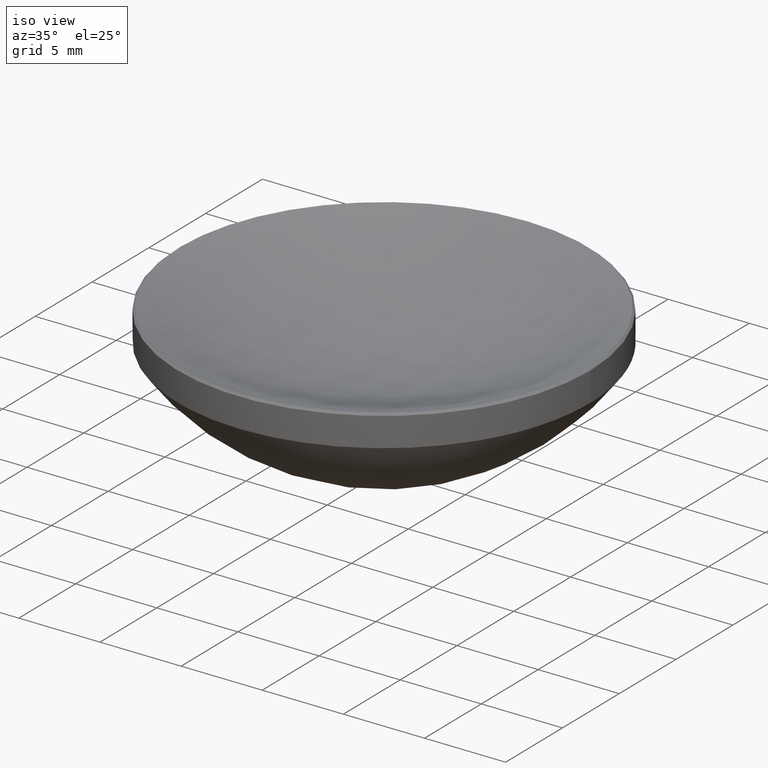
[diagram: clean part render]
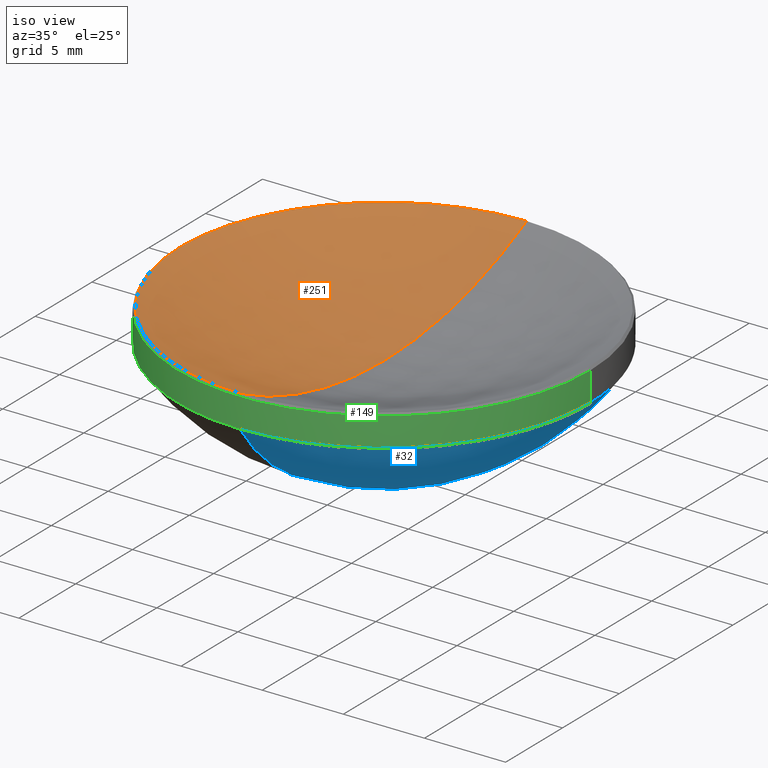
[diagram: same view with three faces highlighted in distinct colors, each labeled with its STEP entity id]
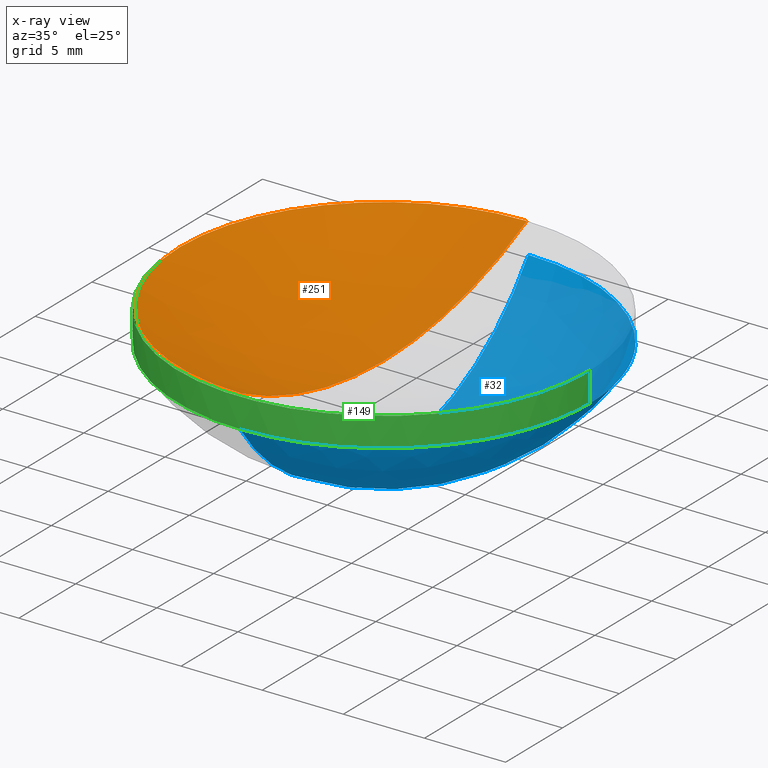
[diagram: x-ray of the same camera — body ghosted, the three highlighted faces saturated]
A machine part, iso view with three faces highlighted in distinct colors.
The next image is the same camera in x-ray (body ghosted, the three faces saturated) — at least one of them is partly hidden behind the body in this view.
Their STEP definitions:

[orange] entity #251 — the highlighted spherical surface has radius 28 mm.
#10 = CARTESIAN_POINT ( 'NONE',  ( -1.539033449312763562E-15, -12.56716181665030874, 11.93283818334969126 ) ) ;
#21 = AXIS2_PLACEMENT_3D ( 'NONE', #247, #141, #226 ) ;
#22 = EDGE_CURVE ( 'NONE', #197, #242, #192, .T. ) ;
#27 = CIRCLE ( 'NONE', #92, 27.99999999999999645 ) ;
#28 = ORIENTED_EDGE ( 'NONE', *, *, #258, .T. ) ;
#31 = DIRECTION ( 'NONE',  ( 1.000000000000000000, 0.000000000000000000, 0.000000000000000000 ) ) ;
#37 = DIRECTION ( 'NONE',  ( 1.000000000000000000, 0.000000000000000000, 0.000000000000000000 ) ) ;
#42 = CARTESIAN_POINT ( 'NONE',  ( 0.000000000000000000, 12.56716181665030874, 11.93283818334969126 ) ) ;
#44 = EDGE_CURVE ( 'NONE', #242, #187, #218, .T. ) ;
#45 = EDGE_LOOP ( 'NONE', ( #154, #130, #166, #28 ) ) ;
#47 = CARTESIAN_POINT ( 'NONE',  ( 0.000000000000000000, 0.000000000000000000, 36.95415797016601545 ) ) ;
#48 = VERTEX_POINT ( 'NONE', #10 ) ;
#70 = DIRECTION ( 'NONE',  ( 0.000000000000000000, 0.000000000000000000, -1.000000000000000000 ) ) ;
#74 = CARTESIAN_POINT ( 'NONE',  ( 0.000000000000000000, 0.000000000000000000, 11.93283818334969126 ) ) ;
#92 = AXIS2_PLACEMENT_3D ( 'NONE', #278, #115, #234 ) ;
#115 = DIRECTION ( 'NONE',  ( -1.000000000000000000, 1.224646799147353207E-16, 0.000000000000000000 ) ) ;
#130 = ORIENTED_EDGE ( 'NONE', *, *, #22, .T. ) ;
#140 = EDGE_CURVE ( 'NONE', #197, #48, #27, .T. ) ;
#141 = DIRECTION ( 'NONE',  ( -1.000000000000000000, 0.000000000000000000, 0.000000000000000000 ) ) ;
#154 = ORIENTED_EDGE ( 'NONE', *, *, #140, .F. ) ;
#155 = DIRECTION ( 'NONE',  ( 1.000000000000000000, 0.000000000000000000, 0.000000000000000000 ) ) ;
#160 = SPHERICAL_SURFACE ( 'NONE', #21, 27.99999999999999645 ) ;
#163 = AXIS2_PLACEMENT_3D ( 'NONE', #74, #229, #37 ) ;
#166 = ORIENTED_EDGE ( 'NONE', *, *, #44, .T. ) ;
#168 = AXIS2_PLACEMENT_3D ( 'NONE', #180, #271, #31 ) ;
#180 = CARTESIAN_POINT ( 'NONE',  ( 0.000000000000000000, 0.000000000000000000, 11.93283818334969126 ) ) ;
#187 = VERTEX_POINT ( 'NONE', #256 ) ;
#192 = CIRCLE ( 'NONE', #245, 27.99999999999999645 ) ;
#197 = VERTEX_POINT ( 'NONE', #231 ) ;
#218 = CIRCLE ( 'NONE', #168, 12.56716181665030341 ) ;
#221 = CIRCLE ( 'NONE', #163, 12.56716181665030341 ) ;
#226 = DIRECTION ( 'NONE',  ( 0.000000000000000000, 1.000000000000000000, 0.000000000000000000 ) ) ;
#229 = DIRECTION ( 'NONE',  ( -0.000000000000000000, -0.000000000000000000, 1.000000000000000000 ) ) ;
#231 = CARTESIAN_POINT ( 'NONE',  ( 0.000000000000000000, 1.714505518806294441E-15, 8.954157970166020775 ) ) ;
#234 = DIRECTION ( 'NONE',  ( -1.224646799147353207E-16, -1.000000000000000000, 0.000000000000000000 ) ) ;
#242 = VERTEX_POINT ( 'NONE', #42 ) ;
#245 = AXIS2_PLACEMENT_3D ( 'NONE', #47, #155, #70 ) ;
#247 = CARTESIAN_POINT ( 'NONE',  ( 0.000000000000000000, 0.000000000000000000, 36.95415797016601545 ) ) ;
#251 = ADVANCED_FACE ( 'NONE', ( #272 ), #160, .F. ) ;
#256 = CARTESIAN_POINT ( 'NONE',  ( -12.56716181665030341, 0.000000000000000000, 11.93283818334969126 ) ) ;
#258 = EDGE_CURVE ( 'NONE', #187, #48, #221, .T. ) ;
#271 = DIRECTION ( 'NONE',  ( -0.000000000000000000, -0.000000000000000000, 1.000000000000000000 ) ) ;
#272 = FACE_OUTER_BOUND ( 'NONE', #45, .T. ) ;
#278 = CARTESIAN_POINT ( 'NONE',  ( 0.000000000000000000, 0.000000000000000000, 36.95415797016601545 ) ) ;

[blue] entity #32 — the highlighted spherical surface has radius 15.5 mm.
#6 = ORIENTED_EDGE ( 'NONE', *, *, #167, .F. ) ;
#12 = EDGE_CURVE ( 'NONE', #198, #106, #65, .T. ) ;
#13 = CARTESIAN_POINT ( 'NONE',  ( 0.000000000000000000, 12.69999999999999574, 10.00000000000000000 ) ) ;
#23 = EDGE_LOOP ( 'NONE', ( #175, #267, #216, #6 ) ) ;
#32 = ADVANCED_FACE ( 'NONE', ( #174 ), #89, .T. ) ;
#50 = EDGE_CURVE ( 'NONE', #111, #219, #100, .T. ) ;
#60 = EDGE_CURVE ( 'NONE', #111, #106, #86, .T. ) ;
#65 = CIRCLE ( 'NONE', #236, 12.69999999999999751 ) ;
#67 = DIRECTION ( 'NONE',  ( -1.000000000000000000, 0.000000000000000000, 0.000000000000000000 ) ) ;
#71 = CARTESIAN_POINT ( 'NONE',  ( 0.000000000000000000, 0.000000000000000000, 10.00000000000000000 ) ) ;
#73 = CARTESIAN_POINT ( 'NONE',  ( 0.000000000000000000, 0.000000000000000000, 18.88594395660922487 ) ) ;
#75 = AXIS2_PLACEMENT_3D ( 'NONE', #262, #67, #114 ) ;
#82 = CARTESIAN_POINT ( 'NONE',  ( -1.555301434917138038E-15, -12.69999999999999574, 10.00000000000000000 ) ) ;
#86 = CIRCLE ( 'NONE', #126, 15.49999999999999645 ) ;
#89 = SPHERICAL_SURFACE ( 'NONE', #75, 15.49999999999999645 ) ;
#96 = CARTESIAN_POINT ( 'NONE',  ( 0.000000000000000000, 0.000000000000000000, 18.88594395660922487 ) ) ;
#97 = CARTESIAN_POINT ( 'NONE',  ( 12.69999999999999751, 1.555301434917138235E-15, 10.00000000000000000 ) ) ;
#99 = DIRECTION ( 'NONE',  ( 1.000000000000000000, 0.000000000000000000, 0.000000000000000000 ) ) ;
#100 = CIRCLE ( 'NONE', #206, 15.49999999999999645 ) ;
#106 = VERTEX_POINT ( 'NONE', #13 ) ;
#111 = VERTEX_POINT ( 'NONE', #156 ) ;
#114 = DIRECTION ( 'NONE',  ( 0.000000000000000000, 1.000000000000000000, 0.000000000000000000 ) ) ;
#123 = DIRECTION ( 'NONE',  ( -0.000000000000000000, -0.000000000000000000, 1.000000000000000000 ) ) ;
#126 = AXIS2_PLACEMENT_3D ( 'NONE', #73, #268, #162 ) ;
#156 = CARTESIAN_POINT ( 'NONE',  ( 0.000000000000000000, 9.491012693391985815E-16, 3.385943956609228422 ) ) ;
#162 = DIRECTION ( 'NONE',  ( 0.000000000000000000, 0.000000000000000000, -1.000000000000000000 ) ) ;
#167 = EDGE_CURVE ( 'NONE', #219, #198, #182, .T. ) ;
#173 = AXIS2_PLACEMENT_3D ( 'NONE', #202, #123, #99 ) ;
#174 = FACE_OUTER_BOUND ( 'NONE', #23, .T. ) ;
#175 = ORIENTED_EDGE ( 'NONE', *, *, #50, .F. ) ;
#177 = DIRECTION ( 'NONE',  ( 1.000000000000000000, 0.000000000000000000, 0.000000000000000000 ) ) ;
#182 = CIRCLE ( 'NONE', #173, 12.69999999999999751 ) ;
#195 = DIRECTION ( 'NONE',  ( -0.000000000000000000, -0.000000000000000000, 1.000000000000000000 ) ) ;
#198 = VERTEX_POINT ( 'NONE', #97 ) ;
#202 = CARTESIAN_POINT ( 'NONE',  ( 0.000000000000000000, 0.000000000000000000, 10.00000000000000000 ) ) ;
#206 = AXIS2_PLACEMENT_3D ( 'NONE', #96, #225, #246 ) ;
#216 = ORIENTED_EDGE ( 'NONE', *, *, #12, .F. ) ;
#219 = VERTEX_POINT ( 'NONE', #82 ) ;
#225 = DIRECTION ( 'NONE',  ( -1.000000000000000000, 1.224646799147353207E-16, 0.000000000000000000 ) ) ;
#236 = AXIS2_PLACEMENT_3D ( 'NONE', #71, #195, #177 ) ;
#246 = DIRECTION ( 'NONE',  ( -1.224646799147353207E-16, -1.000000000000000000, 0.000000000000000000 ) ) ;
#262 = CARTESIAN_POINT ( 'NONE',  ( 0.000000000000000000, 0.000000000000000000, 18.88594395660922487 ) ) ;
#267 = ORIENTED_EDGE ( 'NONE', *, *, #60, .T. ) ;
#268 = DIRECTION ( 'NONE',  ( 1.000000000000000000, -0.000000000000000000, 0.000000000000000000 ) ) ;

[green] entity #149 — the highlighted cylindrical surface (partial cylindrical patch) has radius 12.7 mm, axis along (-0, -0, -1).
#2 = ORIENTED_EDGE ( 'NONE', *, *, #112, .T. ) ;
#3 = VECTOR ( 'NONE', #250, 1000.000000000000000 ) ;
#4 = ORIENTED_EDGE ( 'NONE', *, *, #64, .T. ) ;
#7 = EDGE_CURVE ( 'NONE', #265, #219, #257, .T. ) ;
#9 = VERTEX_POINT ( 'NONE', #266 ) ;
#14 = CYLINDRICAL_SURFACE ( 'NONE', #170, 12.69999999999999929 ) ;
#24 = ORIENTED_EDGE ( 'NONE', *, *, #167, .T. ) ;
#25 = AXIS2_PLACEMENT_3D ( 'NONE', #69, #237, #239 ) ;
#34 = CIRCLE ( 'NONE', #59, 12.69999999999999929 ) ;
#36 = CARTESIAN_POINT ( 'NONE',  ( -12.69999999999999929, 0.000000000000000000, 20.00000000000000000 ) ) ;
#54 = DIRECTION ( 'NONE',  ( 0.000000000000000000, 0.000000000000000000, -1.000000000000000000 ) ) ;
#55 = CARTESIAN_POINT ( 'NONE',  ( 0.000000000000000000, 0.000000000000000000, 11.79999999999999183 ) ) ;
#56 = FACE_OUTER_BOUND ( 'NONE', #279, .T. ) ;
#59 = AXIS2_PLACEMENT_3D ( 'NONE', #55, #54, #137 ) ;
#64 = EDGE_CURVE ( 'NONE', #9, #265, #98, .T. ) ;
#69 = CARTESIAN_POINT ( 'NONE',  ( 0.000000000000000000, 0.000000000000000000, 10.00000000000000000 ) ) ;
#72 = ORIENTED_EDGE ( 'NONE', *, *, #188, .F. ) ;
#79 = CARTESIAN_POINT ( 'NONE',  ( 12.69999999999999929, 1.555301434917138433E-15, 11.79999999999999183 ) ) ;
#82 = CARTESIAN_POINT ( 'NONE',  ( -1.555301434917138038E-15, -12.69999999999999574, 10.00000000000000000 ) ) ;
#97 = CARTESIAN_POINT ( 'NONE',  ( 12.69999999999999751, 1.555301434917138235E-15, 10.00000000000000000 ) ) ;
#98 = LINE ( 'NONE', #36, #3 ) ;
#99 = DIRECTION ( 'NONE',  ( 1.000000000000000000, 0.000000000000000000, 0.000000000000000000 ) ) ;
#112 = EDGE_CURVE ( 'NONE', #172, #9, #34, .T. ) ;
#123 = DIRECTION ( 'NONE',  ( -0.000000000000000000, -0.000000000000000000, 1.000000000000000000 ) ) ;
#137 = DIRECTION ( 'NONE',  ( 1.000000000000000000, 0.000000000000000000, 0.000000000000000000 ) ) ;
#142 = VECTOR ( 'NONE', #277, 1000.000000000000000 ) ;
#146 = CARTESIAN_POINT ( 'NONE',  ( 0.000000000000000000, 0.000000000000000000, 20.00000000000000000 ) ) ;
#149 = ADVANCED_FACE ( 'NONE', ( #56 ), #14, .T. ) ;
#152 = ORIENTED_EDGE ( 'NONE', *, *, #7, .T. ) ;
#165 = DIRECTION ( 'NONE',  ( -1.000000000000000000, 0.000000000000000000, 0.000000000000000000 ) ) ;
#167 = EDGE_CURVE ( 'NONE', #219, #198, #182, .T. ) ;
#170 = AXIS2_PLACEMENT_3D ( 'NONE', #146, #184, #165 ) ;
#172 = VERTEX_POINT ( 'NONE', #79 ) ;
#173 = AXIS2_PLACEMENT_3D ( 'NONE', #202, #123, #99 ) ;
#182 = CIRCLE ( 'NONE', #173, 12.69999999999999751 ) ;
#184 = DIRECTION ( 'NONE',  ( -0.000000000000000000, -0.000000000000000000, -1.000000000000000000 ) ) ;
#186 = LINE ( 'NONE', #255, #142 ) ;
#188 = EDGE_CURVE ( 'NONE', #172, #198, #186, .T. ) ;
#198 = VERTEX_POINT ( 'NONE', #97 ) ;
#202 = CARTESIAN_POINT ( 'NONE',  ( 0.000000000000000000, 0.000000000000000000, 10.00000000000000000 ) ) ;
#219 = VERTEX_POINT ( 'NONE', #82 ) ;
#237 = DIRECTION ( 'NONE',  ( -0.000000000000000000, -0.000000000000000000, 1.000000000000000000 ) ) ;
#239 = DIRECTION ( 'NONE',  ( 1.000000000000000000, 0.000000000000000000, 0.000000000000000000 ) ) ;
#250 = DIRECTION ( 'NONE',  ( -0.000000000000000000, -0.000000000000000000, -1.000000000000000000 ) ) ;
#255 = CARTESIAN_POINT ( 'NONE',  ( 12.69999999999999929, 1.555301434917138433E-15, 20.00000000000000000 ) ) ;
#257 = CIRCLE ( 'NONE', #25, 12.69999999999999751 ) ;
#265 = VERTEX_POINT ( 'NONE', #273 ) ;
#266 = CARTESIAN_POINT ( 'NONE',  ( -12.69999999999999929, 0.000000000000000000, 11.79999999999999183 ) ) ;
#273 = CARTESIAN_POINT ( 'NONE',  ( -12.69999999999999751, 0.000000000000000000, 10.00000000000000000 ) ) ;
#277 = DIRECTION ( 'NONE',  ( -0.000000000000000000, -0.000000000000000000, -1.000000000000000000 ) ) ;
#279 = EDGE_LOOP ( 'NONE', ( #72, #2, #4, #152, #24 ) ) ;